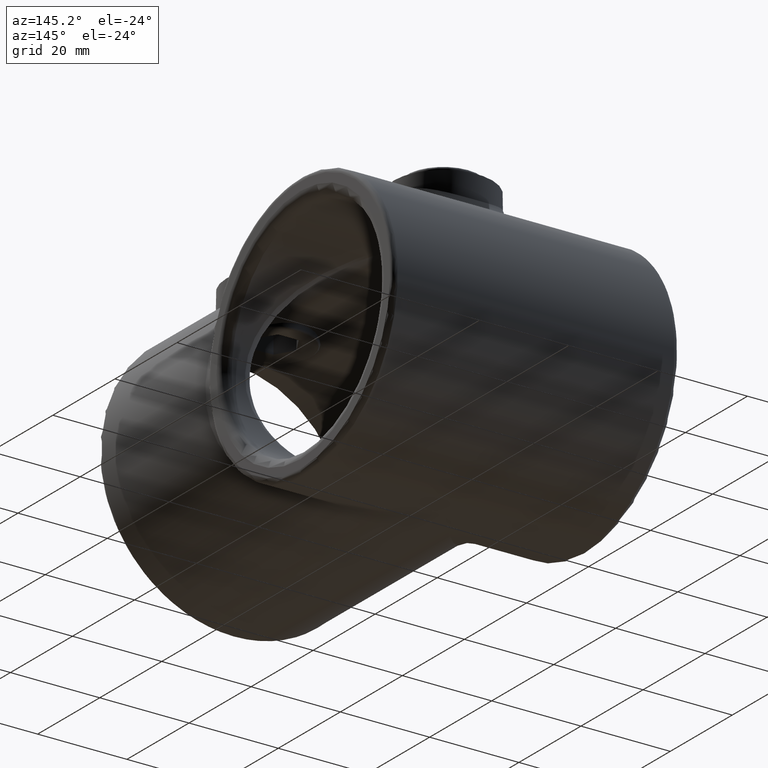
[diagram: clean part render]
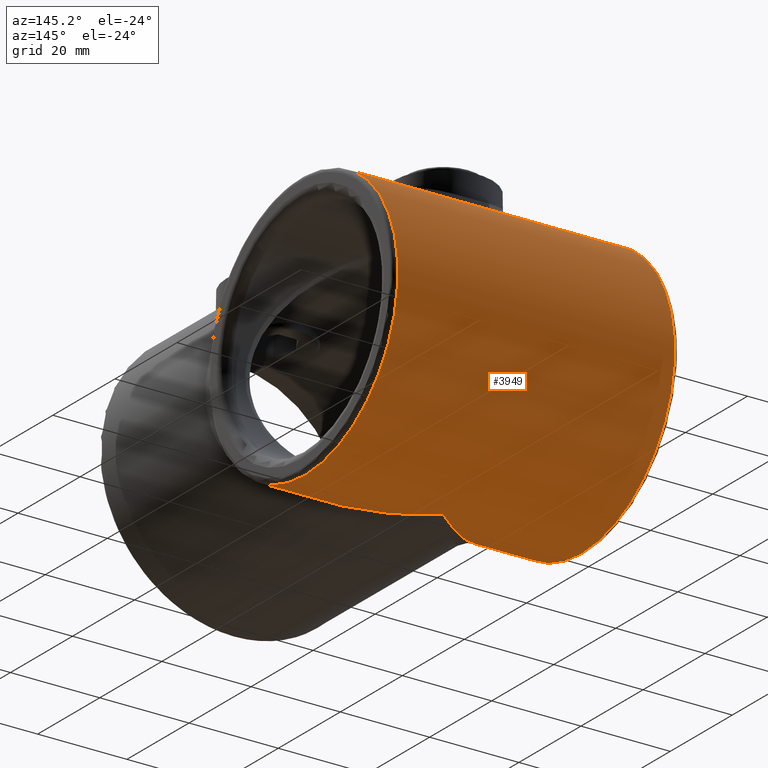
[diagram: same view with one face highlighted and labeled with its STEP entity id]
A machine part, auxiliary view. The second image highlights one B-rep face of the part: STEP entity #3949.
In plain terms, the highlighted cylindrical surface (partial cylindrical patch) has radius 30 mm, axis along (-1, -0, -0).
Its self-contained STEP definition (entity closure, byte-faithful):
#64 = CARTESIAN_POINT ( 'NONE',  ( -11.02416325873869418, 74.46569085668268428, 29.29603189906949723 ) ) ;
#127 = VERTEX_POINT ( 'NONE', #2033 ) ;
#152 = CARTESIAN_POINT ( 'NONE',  ( -11.49586233806641644, 73.69833615155221196, 29.45502298314921319 ) ) ;
#165 = CIRCLE ( 'NONE', #2923, 30.00000000000000000 ) ;
#179 = CARTESIAN_POINT ( 'NONE',  ( -5.596728633111663243, 79.00394415437061468, 27.90930149516242764 ) ) ;
#190 = CARTESIAN_POINT ( 'NONE',  ( 31.00000000000000000, 41.42857142857142350, -13.92692297937591128 ) ) ;
#207 = CARTESIAN_POINT ( 'NONE',  ( 10.11883855355764084, 75.67321409213225536, 29.00557456613359975 ) ) ;
#229 = VERTEX_POINT ( 'NONE', #190 ) ;
#303 = CARTESIAN_POINT ( 'NONE',  ( -31.00000000000000000, 41.42857142857142350, 13.92692297937591128 ) ) ;
#375 = VERTEX_POINT ( 'NONE', #697 ) ;
#378 = VERTEX_POINT ( 'NONE', #1357 ) ;
#400 = CARTESIAN_POINT ( 'NONE',  ( -6.409425537368005799, 78.60710231272545911, 28.06261322667577929 ) ) ;
#411 = CARTESIAN_POINT ( 'NONE',  ( 31.00000000000000000, 41.42857142857142350, -13.92692297937591128 ) ) ;
#475 = CARTESIAN_POINT ( 'NONE',  ( -3.031668500333008609, 79.86498031371012019, 27.55451760678154116 ) ) ;
#482 = CARTESIAN_POINT ( 'NONE',  ( 9.594374556048750335, 59.77625038056579143, 28.85082221006631187 ) ) ;
#489 = CARTESIAN_POINT ( 'NONE',  ( -12.20424850724996269, 63.75931567973075431, 29.70429263483432791 ) ) ;
#502 = CARTESIAN_POINT ( 'NONE',  ( -1.228519883115944289, 80.13634288909349834, 27.43555498639969414 ) ) ;
#515 =( BOUNDED_CURVE ( )  B_SPLINE_CURVE ( 3, ( #953, #3755, #1200, #1268 ),
 .UNSPECIFIED., .F., .T. ) 
 B_SPLINE_CURVE_WITH_KNOTS ( ( 4, 4 ),
 ( 0.4827659233257330373, 1.293116608489746966 ),
 .UNSPECIFIED. ) 
 CURVE ( )  GEOMETRIC_REPRESENTATION_ITEM ( )  RATIONAL_B_SPLINE_CURVE ( ( 1.000000000000000000, 0.9460221965136099698, 0.9460221965136099698, 1.000000000000000000 ) ) 
 REPRESENTATION_ITEM ( '' )  );
#520 = CARTESIAN_POINT ( 'NONE',  ( 11.49822680845967682, 73.71704166430841099, 29.45522119211114997 ) ) ;
#536 = CARTESIAN_POINT ( 'NONE',  ( 12.95837038773972694, 69.14568972889811960, 29.98406264000414367 ) ) ;
#563 = CARTESIAN_POINT ( 'NONE',  ( 1.200773768630411187, 80.14875444035405394, 27.43018782440580594 ) ) ;
#591 = EDGE_CURVE ( 'NONE', #4007, #1612, #3367, .T. ) ;
#674 = ORIENTED_EDGE ( 'NONE', *, *, #591, .T. ) ;
#697 = CARTESIAN_POINT ( 'NONE',  ( -9.594374556029576340, 59.77625038054613071, 28.85082221006070924 ) ) ;
#777 = CARTESIAN_POINT ( 'NONE',  ( -9.311262061174039317, 76.52469285738251870, 28.76686100743454588 ) ) ;
#813 = EDGE_CURVE ( 'NONE', #1612, #375, #515, .T. ) ;
#829 = CARTESIAN_POINT ( 'NONE',  ( 12.02440872890424650, 72.64185642822474165, 29.64005651360541904 ) ) ;
#830 = CARTESIAN_POINT ( 'NONE',  ( -24.79656401425161860, 46.74580227349861872, -24.07176400441838382 ) ) ;
#854 = CARTESIAN_POINT ( 'NONE',  ( 12.93071954416910607, 66.70705208557809840, 29.97366412183296802 ) ) ;
#872 = CARTESIAN_POINT ( 'NONE',  ( 11.42025490924059916, 62.14708205185896617, 29.42849273964623436 ) ) ;
#889 = CARTESIAN_POINT ( 'NONE',  ( 13.00361133745326470, 68.54139373924670053, 30.00137539135399578 ) ) ;
#953 = CARTESIAN_POINT ( 'NONE',  ( -31.00000000000000000, 41.42857142857142350, 13.92692297937591128 ) ) ;
#1024 = CARTESIAN_POINT ( 'NONE',  ( -9.594374556029576340, 59.77625038054613071, 28.85082221006070924 ) ) ;
#1097 = CARTESIAN_POINT ( 'NONE',  ( -4.760889885550057876, 79.35524345081195463, 27.76908413639712236 ) ) ;
#1121 = CARTESIAN_POINT ( 'NONE',  ( -12.82446268752718765, 70.01931372897303163, 29.93349674870924915 ) ) ;
#1132 = CARTESIAN_POINT ( 'NONE',  ( -0.3143043895671235877, 80.18726085308426832, 27.41296541720755187 ) ) ;
#1146 = CARTESIAN_POINT ( 'NONE',  ( 12.59599330007742601, 64.92546288991171366, 29.84767320080703712 ) ) ;
#1160 = CARTESIAN_POINT ( 'NONE',  ( 12.77471402028677794, 70.33802379638144942, 29.91471648005625639 ) ) ;
#1170 = B_SPLINE_CURVE_WITH_KNOTS ( 'NONE', 3,
 ( #1024, #3972, #3033, #3644, #2069, #3372, #489, #1435, #3671, #3260, #1768, #2715, #1973, #1121, #2054, #2385, #3009, #3998, #3576, #3361, #152, #2311, #64, #1757, #3047, #777, #1662, #3985, #3885, #2081, #400, #2689, #179, #1097, #3333, #475, #2412, #1729, #502, #2727, #1132, #3412, #563, #2456, #2796, #2485, #1812, #2444, #2140, #3121, #3697, #1528, #2110, #207, #1198, #1512, #520, #2785, #829, #3078, #2739, #3088, #1160, #536, #889, #3753, #2769, #854, #4022, #1175, #1146, #1469, #3398, #3439, #3740, #872, #3104, #1187, #1483, #1497 ),
 .UNSPECIFIED., .F., .F.,
 ( 4, 2, 2, 2, 2, 2, 2, 2, 2, 2, 2, 2, 2, 2, 2, 2, 2, 2, 2, 2, 2, 2, 2, 2, 2, 2, 2, 2, 2, 2, 2, 2, 2, 2, 2, 2, 2, 2, 2, 4 ),
 ( 0.0009836131845876222492, 0.002804862216241365939, 0.004626111247895109413, 0.006447360279548852886, 0.007357984795375725057, 0.008268609311202598094, 0.01191110737451020994, 0.01282173189033711073, 0.01373235640616401500, 0.01555360543781782179, 0.01646422995364470870, 0.01737485446947158868, 0.01919610350112535557, 0.02101735253277912246, 0.02283860156443288936, 0.02374922608025976239, 0.02465985059608663196, 0.02648109962774037804, 0.02830234865939412064, 0.02921297317522099368, 0.03012359769104786672, 0.03194484672270161280, 0.03376609575435535193, 0.03558734478600909801, 0.03740859381766284408, 0.03922984284931659016, 0.04105109188097032930, 0.04287234091262407537, 0.04469358994427781451, 0.04560421446010468755, 0.04651483897593156058, 0.04833608800758533441, 0.05015733703923910825, 0.05106796155506600904, 0.05197858607089289595, 0.05379983510254666979, 0.05471045961837357752, 0.05562108413420048525, 0.05744233316585429377, 0.05926358219750808842 ),
 .UNSPECIFIED. ) ;
#1175 = CARTESIAN_POINT ( 'NONE',  ( 12.74240158687039148, 65.51147108807883512, 29.90258232246151948 ) ) ;
#1187 = CARTESIAN_POINT ( 'NONE',  ( 10.40350508034268628, 60.66838993561234616, 29.09460135799419334 ) ) ;
#1198 = CARTESIAN_POINT ( 'NONE',  ( 10.50363284834683597, 75.20495113946782340, 29.12627417119328399 ) ) ;
#1200 = CARTESIAN_POINT ( 'NONE',  ( -18.94427285567568475, 51.76205183799227427, 26.56642415253938694 ) ) ;
#1206 = EDGE_LOOP ( 'NONE', ( #674, #1703, #1519, #1463, #1803, #2682, #3506 ) ) ;
#1268 = CARTESIAN_POINT ( 'NONE',  ( -9.594374556029576340, 59.77625038054613071, 28.85082221006070924 ) ) ;
#1357 = CARTESIAN_POINT ( 'NONE',  ( 9.594374556048750335, 59.77625038056579143, 28.85082221006631187 ) ) ;
#1435 = CARTESIAN_POINT ( 'NONE',  ( -12.49178313355313996, 64.61245122369508920, 29.80950543699387367 ) ) ;
#1463 = ORIENTED_EDGE ( 'NONE', *, *, #3386, .T. ) ;
#1469 = CARTESIAN_POINT ( 'NONE',  ( 12.30685645880517498, 64.06196028046568358, 29.74182134055077498 ) ) ;
#1483 = CARTESIAN_POINT ( 'NONE',  ( 10.01332019532830664, 60.20583331146957562, 28.97327218528062431 ) ) ;
#1490 = CARTESIAN_POINT ( 'NONE',  ( 26.48659956599907517, 45.29720037200078764, 21.30795020211001045 ) ) ;
#1497 = CARTESIAN_POINT ( 'NONE',  ( 9.594374556048750335, 59.77625038056579143, 28.85082221006631187 ) ) ;
#1512 = CARTESIAN_POINT ( 'NONE',  ( 11.19182190211633809, 74.22806115089036894, 29.35068009975935865 ) ) ;
#1519 = ORIENTED_EDGE ( 'NONE', *, *, #2530, .T. ) ;
#1528 = CARTESIAN_POINT ( 'NONE',  ( 8.859266758729205549, 76.93752441138802567, 28.64037875277770695 ) ) ;
#1543 = CARTESIAN_POINT ( 'NONE',  ( 32.00000000000000000, 68.00000000000000000, 0.000000000000000000 ) ) ;
#1612 = VERTEX_POINT ( 'NONE', #303 ) ;
#1649 = CARTESIAN_POINT ( 'NONE',  ( -31.00000000000000000, 41.42857142857142350, -13.92692297937591128 ) ) ;
#1662 = CARTESIAN_POINT ( 'NONE',  ( -8.865207027263188877, 76.93245463832811026, 28.64197873584602405 ) ) ;
#1703 = ORIENTED_EDGE ( 'NONE', *, *, #813, .T. ) ;
#1708 = VERTEX_POINT ( 'NONE', #3915 ) ;
#1729 = CARTESIAN_POINT ( 'NONE',  ( -1.534571286555036052, 80.10566402539367914, 27.44913191893703086 ) ) ;
#1757 = CARTESIAN_POINT ( 'NONE',  ( -10.50936199039786345, 75.19752966706172970, 29.12809880225132630 ) ) ;
#1768 = CARTESIAN_POINT ( 'NONE',  ( -12.78834611323309289, 65.78852158571613984, 29.91990689249619706 ) ) ;
#1803 = ORIENTED_EDGE ( 'NONE', *, *, #3933, .T. ) ;
#1804 = CARTESIAN_POINT ( 'NONE',  ( 31.00000000000000000, 41.42857142857142350, 13.92692297937591128 ) ) ;
#1812 = CARTESIAN_POINT ( 'NONE',  ( 4.746677200654403350, 79.36028036935452690, 27.76700152056449511 ) ) ;
#1842 = AXIS2_PLACEMENT_3D ( 'NONE', #1543, #4060, #3138 ) ;
#1949 = EDGE_CURVE ( 'NONE', #1708, #4007, #2991, .T. ) ;
#1973 = CARTESIAN_POINT ( 'NONE',  ( -13.05406660878512604, 68.50641297741672986, 30.02021376593429380 ) ) ;
#2033 = CARTESIAN_POINT ( 'NONE',  ( 31.00000000000000000, 41.42857142857142350, 13.92692297937591128 ) ) ;
#2054 = CARTESIAN_POINT ( 'NONE',  ( -12.76624048716774240, 70.32062955993505682, 29.91158146868867007 ) ) ;
#2069 = CARTESIAN_POINT ( 'NONE',  ( -11.41777479761643477, 62.14277242173568538, 29.42764352714047504 ) ) ;
#2081 = CARTESIAN_POINT ( 'NONE',  ( -6.671945511725604128, 78.46382527282870001, 28.11644376534239598 ) ) ;
#2087 = CARTESIAN_POINT ( 'NONE',  ( 18.94427285567540764, 51.76205183799250165, 26.56642415253957523 ) ) ;
#2094 = CARTESIAN_POINT ( 'NONE',  ( -31.00000000000000000, 41.42857142857142350, -13.92692297937591128 ) ) ;
#2099 = CYLINDRICAL_SURFACE ( 'NONE', #1842, 30.00000000000000000 ) ;
#2110 = CARTESIAN_POINT ( 'NONE',  ( 9.297578330499906230, 76.53775103874893659, 28.76296885955228788 ) ) ;
#2140 = CARTESIAN_POINT ( 'NONE',  ( 6.394755501736658410, 78.62664397209978517, 28.05674238899312911 ) ) ;
#2170 =( BOUNDED_CURVE ( )  B_SPLINE_CURVE ( 3, ( #411, #3852, #3838, #2306 ),
 .UNSPECIFIED., .F., .F. ) 
 B_SPLINE_CURVE_WITH_KNOTS ( ( 4, 4 ),
 ( 3.624358576915525987, 4.712388980384689674 ),
 .UNSPECIFIED. ) 
 CURVE ( )  GEOMETRIC_REPRESENTATION_ITEM ( )  RATIONAL_B_SPLINE_CURVE ( ( 1.000000000000000000, 0.9037582755141988500, 0.9037582755141988500, 1.000000000000000000 ) ) 
 REPRESENTATION_ITEM ( '' )  );
#2172 = DIRECTION ( 'NONE',  ( 0.000000000000000000, 0.000000000000000000, -1.000000000000000000 ) ) ;
#2259 = EDGE_CURVE ( 'NONE', #229, #1708, #2170, .T. ) ;
#2306 = CARTESIAN_POINT ( 'NONE',  ( 0.000000000000000000, 68.00000000000000000, -30.00000000000000000 ) ) ;
#2311 = CARTESIAN_POINT ( 'NONE',  ( -11.18726018440830394, 74.21477528046089844, 29.35040003215131676 ) ) ;
#2385 = CARTESIAN_POINT ( 'NONE',  ( -12.62765765254103378, 70.91175751995444898, 29.85983415321380008 ) ) ;
#2398 = CARTESIAN_POINT ( 'NONE',  ( 0.000000000000000000, 68.00000000000000000, -30.00000000000000000 ) ) ;
#2412 = CARTESIAN_POINT ( 'NONE',  ( -2.440004177106539274, 79.98454171580718253, 27.50233695993399508 ) ) ;
#2444 = CARTESIAN_POINT ( 'NONE',  ( 5.854443824426955878, 78.89653498674108789, 27.95224264341056397 ) ) ;
#2450 = DIRECTION ( 'NONE',  ( 1.000000000000000000, 0.000000000000000000, 0.000000000000000000 ) ) ;
#2456 = CARTESIAN_POINT ( 'NONE',  ( 2.403984005398051238, 79.99083694632733454, 27.49958668527209582 ) ) ;
#2485 = CARTESIAN_POINT ( 'NONE',  ( 4.177407704555624157, 79.55523476247594772, 27.68584304711141542 ) ) ;
#2530 = EDGE_CURVE ( 'NONE', #375, #378, #1170, .T. ) ;
#2682 = ORIENTED_EDGE ( 'NONE', *, *, #2259, .T. ) ;
#2689 = CARTESIAN_POINT ( 'NONE',  ( -5.872371147377140943, 78.87694252962693042, 27.95913091978749065 ) ) ;
#2696 = AXIS2_PLACEMENT_3D ( 'NONE', #2976, #2450, #3055 ) ;
#2715 = CARTESIAN_POINT ( 'NONE',  ( -13.04372458950598279, 67.29761581236893164, 30.01616398164041755 ) ) ;
#2727 = CARTESIAN_POINT ( 'NONE',  ( -0.6185699885200461878, 80.17706955171952643, 27.41750304579170816 ) ) ;
#2739 = CARTESIAN_POINT ( 'NONE',  ( 12.35761610173110903, 71.79584389621420826, 29.76032243617485662 ) ) ;
#2769 = CARTESIAN_POINT ( 'NONE',  ( 12.98346695004766538, 67.31419245884238478, 29.99369805833144298 ) ) ;
#2785 = CARTESIAN_POINT ( 'NONE',  ( 11.90010958624564630, 72.91509710226075924, 29.59586923359839261 ) ) ;
#2796 = CARTESIAN_POINT ( 'NONE',  ( 3.007038419765700077, 79.87070739811555597, 27.55205367143337369 ) ) ;
#2827 = CARTESIAN_POINT ( 'NONE',  ( 31.00000000000000000, 68.00000000000000000, 0.000000000000000000 ) ) ;
#2923 = AXIS2_PLACEMENT_3D ( 'NONE', #2827, #3458, #2172 ) ;
#2976 = CARTESIAN_POINT ( 'NONE',  ( -31.00000000000000000, 68.00000000000000000, 0.000000000000000000 ) ) ;
#2991 =( BOUNDED_CURVE ( )  B_SPLINE_CURVE ( 3, ( #2398, #4010, #830, #2094 ),
 .UNSPECIFIED., .F., .T. ) 
 B_SPLINE_CURVE_WITH_KNOTS ( ( 4, 4 ),
 ( 4.712388980384689674, 5.800419383853853361 ),
 .UNSPECIFIED. ) 
 CURVE ( )  GEOMETRIC_REPRESENTATION_ITEM ( )  RATIONAL_B_SPLINE_CURVE ( ( 1.000000000000000000, 0.9037582755141988500, 0.9037582755141988500, 1.000000000000000000 ) ) 
 REPRESENTATION_ITEM ( '' )  );
#3007 = FACE_OUTER_BOUND ( 'NONE', #1206, .T. ) ;
#3009 = CARTESIAN_POINT ( 'NONE',  ( -12.54710488143960667, 71.20293245411464511, 29.82992943471963798 ) ) ;
#3033 = CARTESIAN_POINT ( 'NONE',  ( -10.39497504442042697, 60.65786112395549878, 29.09192237234188028 ) ) ;
#3047 = CARTESIAN_POINT ( 'NONE',  ( -10.13229364104071273, 75.65765814228230113, 29.00970445057488334 ) ) ;
#3055 = DIRECTION ( 'NONE',  ( 0.000000000000000000, 0.000000000000000000, -1.000000000000000000 ) ) ;
#3078 = CARTESIAN_POINT ( 'NONE',  ( 12.25294305231121150, 72.08294945708475154, 29.72220222259555911 ) ) ;
#3088 = CARTESIAN_POINT ( 'NONE',  ( 12.63628210270995034, 70.92605861005465329, 29.86267018484120328 ) ) ;
#3104 = CARTESIAN_POINT ( 'NONE',  ( 11.10633176289341506, 61.63875198499286512, 29.32205412327716942 ) ) ;
#3121 = CARTESIAN_POINT ( 'NONE',  ( 7.434764960770462672, 78.01420995829668925, 28.28112364286893055 ) ) ;
#3138 = DIRECTION ( 'NONE',  ( 0.000000000000000000, 0.000000000000000000, 1.000000000000000000 ) ) ;
#3260 = CARTESIAN_POINT ( 'NONE',  ( -12.72512052174253050, 65.48880441426304344, 29.89616897848765120 ) ) ;
#3333 = CARTESIAN_POINT ( 'NONE',  ( -4.192110951421611276, 79.55032812597009695, 27.68788757867940120 ) ) ;
#3361 = CARTESIAN_POINT ( 'NONE',  ( -11.64186809063802919, 73.43169440055842756, 29.50545690050563508 ) ) ;
#3367 = CIRCLE ( 'NONE', #2696, 30.00000000000000000 ) ;
#3372 = CARTESIAN_POINT ( 'NONE',  ( -11.96998729114933724, 63.20875506679583822, 29.61987998716535486 ) ) ;
#3386 = EDGE_CURVE ( 'NONE', #378, #127, #3822, .T. ) ;
#3398 = CARTESIAN_POINT ( 'NONE',  ( 12.19835427812953910, 63.77578134552289413, 29.70244883209331732 ) ) ;
#3412 = CARTESIAN_POINT ( 'NONE',  ( 0.5964064282609236045, 80.18796582999044631, 27.41265199121624363 ) ) ;
#3439 = CARTESIAN_POINT ( 'NONE',  ( 11.96191379348301886, 63.21829059177608201, 29.61781127968871274 ) ) ;
#3458 = DIRECTION ( 'NONE',  ( -1.000000000000000000, -0.000000000000000000, -0.000000000000000000 ) ) ;
#3506 = ORIENTED_EDGE ( 'NONE', *, *, #1949, .T. ) ;
#3576 = CARTESIAN_POINT ( 'NONE',  ( -12.04623031347728279, 72.62079291852842289, 29.64708141923391338 ) ) ;
#3644 = CARTESIAN_POINT ( 'NONE',  ( -11.09755992003518266, 61.62542324095343815, 29.31913576039569236 ) ) ;
#3671 = CARTESIAN_POINT ( 'NONE',  ( -12.57694072609875491, 64.90139607625704343, 29.84100662819330907 ) ) ;
#3697 = CARTESIAN_POINT ( 'NONE',  ( 7.928353223452109688, 77.67547071824603222, 28.39957577301254332 ) ) ;
#3740 = CARTESIAN_POINT ( 'NONE',  ( 11.83370877952969202, 62.94592668140909808, 29.57244581107687509 ) ) ;
#3753 = CARTESIAN_POINT ( 'NONE',  ( 12.99785881872496063, 67.62206330560300671, 29.99918452214138753 ) ) ;
#3755 = CARTESIAN_POINT ( 'NONE',  ( -26.48659956599917109, 45.29720037200071658, 21.30795020210986834 ) ) ;
#3822 =( BOUNDED_CURVE ( )  B_SPLINE_CURVE ( 3, ( #482, #2087, #1490, #1804 ),
 .UNSPECIFIED., .F., .T. ) 
 B_SPLINE_CURVE_WITH_KNOTS ( ( 4, 4 ),
 ( 1.848476045100031273, 2.658826730264060245 ),
 .UNSPECIFIED. ) 
 CURVE ( )  GEOMETRIC_REPRESENTATION_ITEM ( )  RATIONAL_B_SPLINE_CURVE ( ( 1.000000000000000000, 0.9460221965136078603, 0.9460221965136078603, 1.000000000000000000 ) ) 
 REPRESENTATION_ITEM ( '' )  );
#3838 = CARTESIAN_POINT ( 'NONE',  ( 13.36282823191080027, 56.54614722979074770, -29.99999999999997868 ) ) ;
#3852 = CARTESIAN_POINT ( 'NONE',  ( 24.79656401425162926, 46.74580227349859740, -24.07176400441837316 ) ) ;
#3885 = CARTESIAN_POINT ( 'NONE',  ( -7.441927305788021307, 78.00913575838124814, 28.28288172676352019 ) ) ;
#3915 = CARTESIAN_POINT ( 'NONE',  ( 0.000000000000000000, 68.00000000000000000, -30.00000000000000000 ) ) ;
#3933 = EDGE_CURVE ( 'NONE', #127, #229, #165, .T. ) ;
#3949 = ADVANCED_FACE ( 'NONE', ( #3007 ), #2099, .T. ) ;
#3972 = CARTESIAN_POINT ( 'NONE',  ( -10.01077648853496527, 60.20322501836906781, 28.97252870735728081 ) ) ;
#3985 = CARTESIAN_POINT ( 'NONE',  ( -7.931907789447488533, 77.67301017050559153, 28.40043249691351690 ) ) ;
#3998 = CARTESIAN_POINT ( 'NONE',  ( -12.27268205237360910, 72.06376455391878721, 29.72910498474867680 ) ) ;
#4007 = VERTEX_POINT ( 'NONE', #1649 ) ;
#4010 = CARTESIAN_POINT ( 'NONE',  ( -13.36282823191078606, 56.54614722979074770, -29.99999999999998579 ) ) ;
#4022 = CARTESIAN_POINT ( 'NONE',  ( 12.89238033095198865, 66.40618665862510284, 29.95912315901652434 ) ) ;
#4060 = DIRECTION ( 'NONE',  ( -1.000000000000000000, -0.000000000000000000, -0.000000000000000000 ) ) ;